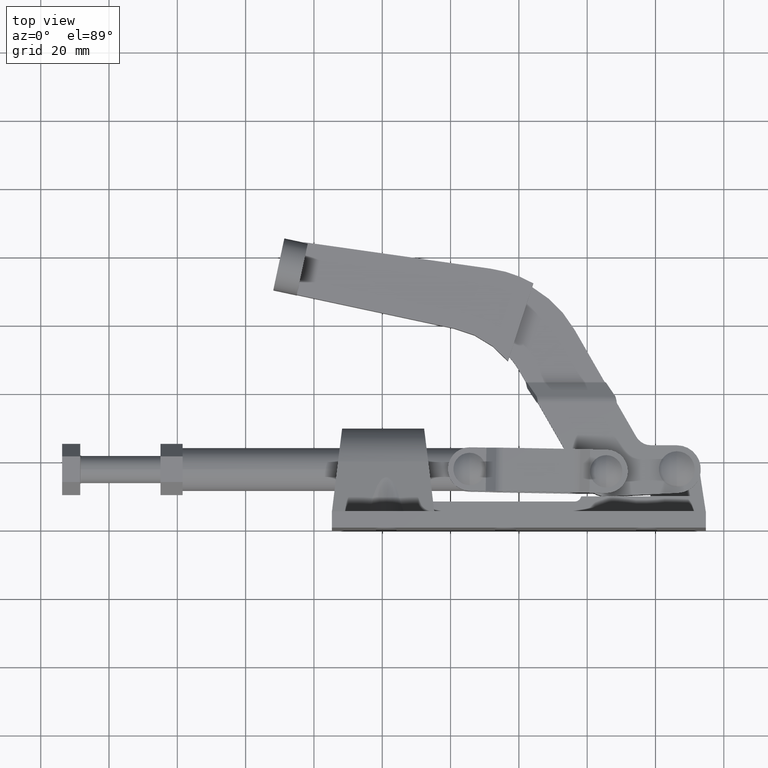
[diagram: clean part render]
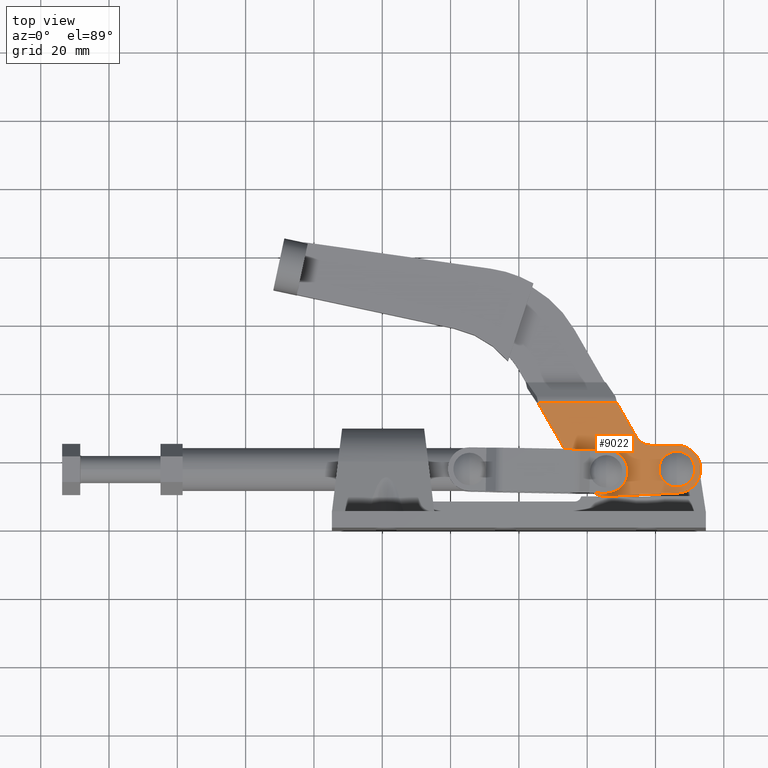
[diagram: same view with one face highlighted and labeled with its STEP entity id]
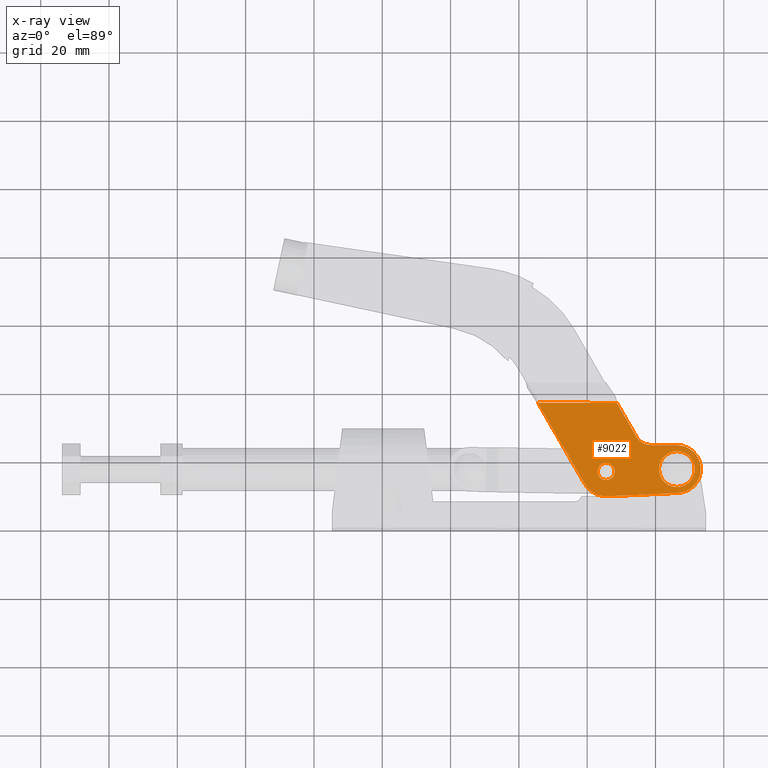
[diagram: x-ray of the same camera — body ghosted, the highlighted face saturated]
A machine part, top view. The second image highlights one B-rep face of the part: STEP entity #9022.
The next image is the same camera in x-ray: the body ghosted, the highlighted face saturated — about 0% of this face is hidden behind the body in this view.
In plain terms, the highlighted planar face has unit normal (0, 0, 1).
Its self-contained STEP definition (entity closure, byte-faithful):
#53 = VERTEX_POINT ( 'NONE', #6060 ) ;
#68 = EDGE_CURVE ( 'NONE', #3408, #7491, #8660, .T. ) ;
#354 = DIRECTION ( 'NONE',  ( 7.909725255113680600E-018, 5.401219338359685800E-017, 1.000000000000000000 ) ) ;
#418 = CARTESIAN_POINT ( 'NONE',  ( 19.24965462170589700, 13.17531681489601800, 6.274999999999997700 ) ) ;
#449 = CIRCLE ( 'NONE', #3706, 2.499999999999998700 ) ;
#459 = CIRCLE ( 'NONE', #3242, 5.250000000000008000 ) ;
#502 = EDGE_CURVE ( 'NONE', #5960, #5327, #6922, .T. ) ;
#512 = CARTESIAN_POINT ( 'NONE',  ( 25.55907583460860600, 16.80706624983414300, 6.274999999999997700 ) ) ;
#515 = FACE_OUTER_BOUND ( 'NONE', #1390, .T. ) ;
#641 = ORIENTED_EDGE ( 'NONE', *, *, #7682, .F. ) ;
#719 = FACE_BOUND ( 'NONE', #2257, .T. ) ;
#915 = ORIENTED_EDGE ( 'NONE', *, *, #68, .T. ) ;
#916 = ORIENTED_EDGE ( 'NONE', *, *, #2135, .F. ) ;
#952 = CARTESIAN_POINT ( 'NONE',  ( 46.25915705347352300, 24.49999401060219000, 6.274999999999995900 ) ) ;
#1128 = CARTESIAN_POINT ( 'NONE',  ( 46.24999999999999300, 17.49999999999999300, 6.274999999999995000 ) ) ;
#1165 = DIRECTION ( 'NONE',  ( -0.9999991443707729700, 0.001308150496584185600, 7.839062409725220800E-018 ) ) ;
#1191 = DIRECTION ( 'NONE',  ( -7.909725255113680600E-018, -5.401219338359685800E-017, -1.000000000000000000 ) ) ;
#1203 = DIRECTION ( 'NONE',  ( 1.000000000000000000, 0.0000000000000000000, 0.0000000000000000000 ) ) ;
#1269 = EDGE_CURVE ( 'NONE', #5327, #8662, #8634, .T. ) ;
#1390 = EDGE_LOOP ( 'NONE', ( #915, #3031, #2408, #3975, #5999, #7867, #4731, #7487 ) ) ;
#1511 = CIRCLE ( 'NONE', #6914, 4.999999999999995600 ) ;
#1700 = DIRECTION ( 'NONE',  ( 0.9999991443707730900, -0.001308150496584405000, 0.0000000000000000000 ) ) ;
#1739 = ORIENTED_EDGE ( 'NONE', *, *, #5902, .F. ) ;
#1778 = DIRECTION ( 'NONE',  ( 0.4988666806233692500, -0.8666787380360851900, 4.286532121759531200E-017 ) ) ;
#1815 = DIRECTION ( 'NONE',  ( 7.909725255113680600E-018, 5.401219338359685800E-017, 1.000000000000000000 ) ) ;
#1827 = DIRECTION ( 'NONE',  ( 7.909725255113680600E-018, 5.401219338359685800E-017, 1.000000000000000000 ) ) ;
#1843 = DIRECTION ( 'NONE',  ( 0.0000000000000000000, -1.000000000000000000, 0.0000000000000000000 ) ) ;
#2001 = VECTOR ( 'NONE', #1778, 1000.000000000000200 ) ;
#2135 = EDGE_CURVE ( 'NONE', #3933, #5671, #5931, .T. ) ;
#2163 = LINE ( 'NONE', #5384, #5903 ) ;
#2257 = EDGE_LOOP ( 'NONE', ( #916, #641 ) ) ;
#2281 = DIRECTION ( 'NONE',  ( 0.9988955827784722400, 0.04698526051493500500, -1.043876659543572900E-017 ) ) ;
#2404 = CARTESIAN_POINT ( 'NONE',  ( 5.584013993415916300, 36.91657000779607500, 6.275000006777103700 ) ) ;
#2408 = ORIENTED_EDGE ( 'NONE', *, *, #5238, .T. ) ;
#2442 = CARTESIAN_POINT ( 'NONE',  ( 34.35970871110382800, 27.01556243225421000, 6.274999999999995900 ) ) ;
#2587 = DIRECTION ( 'NONE',  ( -0.4988666806233694200, 0.8666787380360851900, -4.286532121759531200E-017 ) ) ;
#2588 = CARTESIAN_POINT ( 'NONE',  ( 25.55907583460860600, 16.80706624983414300, 6.274999999999997700 ) ) ;
#2700 = CARTESIAN_POINT ( 'NONE',  ( 46.24999999999999300, 12.24999999999998200, 6.274999999999995900 ) ) ;
#2852 = CARTESIAN_POINT ( 'NONE',  ( 25.55907583460859900, 16.80706624983415100, 6.274999999999996800 ) ) ;
#2999 = VERTEX_POINT ( 'NONE', #8446 ) ;
#3031 = ORIENTED_EDGE ( 'NONE', *, *, #7212, .T. ) ;
#3208 = ORIENTED_EDGE ( 'NONE', *, *, #5237, .F. ) ;
#3209 = CARTESIAN_POINT ( 'NONE',  ( 46.24999999999743500, 17.50000000000677900, 6.274999999999996800 ) ) ;
#3242 = AXIS2_PLACEMENT_3D ( 'NONE', #1128, #6050, #1843 ) ;
#3270 = DIRECTION ( 'NONE',  ( 1.000000000000000000, 0.0000000000000000000, 0.0000000000000000000 ) ) ;
#3408 = VERTEX_POINT ( 'NONE', #2442 ) ;
#3426 = CARTESIAN_POINT ( 'NONE',  ( 34.35970871110382100, 27.01556243225421000, 6.274999999999995900 ) ) ;
#3435 = DIRECTION ( 'NONE',  ( -0.9999991443707729700, 0.001308150496584600600, 7.839062409725199300E-018 ) ) ;
#3551 = DIRECTION ( 'NONE',  ( 0.9999991443707730900, -0.001308150496584300500, -7.839062409725216200E-018 ) ) ;
#3706 = AXIS2_PLACEMENT_3D ( 'NONE', #2588, #7471, #3270 ) ;
#3712 = CARTESIAN_POINT ( 'NONE',  ( 23.05907583460860600, 16.80706624983414300, 6.274999999999997700 ) ) ;
#3849 = LINE ( 'NONE', #7628, #7544 ) ;
#3933 = VERTEX_POINT ( 'NONE', #4467 ) ;
#3975 = ORIENTED_EDGE ( 'NONE', *, *, #5841, .T. ) ;
#4196 = CARTESIAN_POINT ( 'NONE',  ( 19.24965462170589700, 13.17531681489601800, 6.274999999999997700 ) ) ;
#4248 = FACE_BOUND ( 'NONE', #4886, .T. ) ;
#4467 = CARTESIAN_POINT ( 'NONE',  ( 28.05907583460860300, 16.80706624983414300, 6.274999999999997700 ) ) ;
#4560 = CARTESIAN_POINT ( 'NONE',  ( 25.55907583460859900, 16.80706624983415100, 6.274999999999996800 ) ) ;
#4731 = ORIENTED_EDGE ( 'NONE', *, *, #8813, .T. ) ;
#4886 = EDGE_LOOP ( 'NONE', ( #1739, #3208 ) ) ;
#4979 = VECTOR ( 'NONE', #2587, 1000.000000000000000 ) ;
#4982 = VECTOR ( 'NONE', #2281, 1000.000000000000100 ) ;
#5237 = EDGE_CURVE ( 'NONE', #8897, #2999, #7575, .T. ) ;
#5238 = EDGE_CURVE ( 'NONE', #8150, #8406, #5964, .T. ) ;
#5246 = DIRECTION ( 'NONE',  ( 0.9999991443707730900, -0.001308150496584309600, 0.0000000000000000000 ) ) ;
#5327 = VERTEX_POINT ( 'NONE', #7485 ) ;
#5384 = CARTESIAN_POINT ( 'NONE',  ( 46.25915705347352300, 24.49999401060219000, 6.274999999999995900 ) ) ;
#5405 = CARTESIAN_POINT ( 'NONE',  ( 38.69310240128425000, 29.50989583537105800, 6.274999999999995900 ) ) ;
#5421 = DIRECTION ( 'NONE',  ( 0.0000000000000000000, 0.0000000000000000000, 1.000000000000000000 ) ) ;
#5555 = AXIS2_PLACEMENT_3D ( 'NONE', #6014, #1815, #6708 ) ;
#5671 = VERTEX_POINT ( 'NONE', #3712 ) ;
#5841 = EDGE_CURVE ( 'NONE', #8406, #5960, #8941, .T. ) ;
#5902 = EDGE_CURVE ( 'NONE', #2999, #8897, #459, .T. ) ;
#5903 = VECTOR ( 'NONE', #1165, 1000.000000000000100 ) ;
#5931 = CIRCLE ( 'NONE', #8630, 2.499999999999998700 ) ;
#5960 = VERTEX_POINT ( 'NONE', #7613 ) ;
#5964 = LINE ( 'NONE', #418, #2001 ) ;
#5999 = ORIENTED_EDGE ( 'NONE', *, *, #502, .T. ) ;
#6014 = CARTESIAN_POINT ( 'NONE',  ( 46.24999999999999300, 17.49999999999999300, 6.274999999999995000 ) ) ;
#6050 = DIRECTION ( 'NONE',  ( 7.909725255113680600E-018, 5.401219338359685800E-017, 1.000000000000000000 ) ) ;
#6060 = CARTESIAN_POINT ( 'NONE',  ( 38.68656164880132300, 24.50990011351719400, 6.274999999999995900 ) ) ;
#6110 = DIRECTION ( 'NONE',  ( -0.9999991443707732000, 0.001308150496584504700, 0.0000000000000000000 ) ) ;
#6517 = CARTESIAN_POINT ( 'NONE',  ( 28.67800500109032300, 36.88635956614234600, 6.275000006777102800 ) ) ;
#6702 = AXIS2_PLACEMENT_3D ( 'NONE', #2852, #7735, #3551 ) ;
#6708 = DIRECTION ( 'NONE',  ( 0.0000000000000000000, -1.000000000000000000, 0.0000000000000000000 ) ) ;
#6914 = AXIS2_PLACEMENT_3D ( 'NONE', #5405, #1191, #6110 ) ;
#6922 = LINE ( 'NONE', #7515, #4982 ) ;
#7212 = EDGE_CURVE ( 'NONE', #7491, #8150, #3849, .T. ) ;
#7471 = DIRECTION ( 'NONE',  ( 0.0000000000000000000, 0.0000000000000000000, 1.000000000000000000 ) ) ;
#7485 = CARTESIAN_POINT ( 'NONE',  ( 46.57889682360198000, 10.50773092055747400, 6.274999999999997700 ) ) ;
#7487 = ORIENTED_EDGE ( 'NONE', *, *, #8263, .T. ) ;
#7491 = VERTEX_POINT ( 'NONE', #6517 ) ;
#7515 = CARTESIAN_POINT ( 'NONE',  ( 25.90112853115733000, 9.535106407206873400, 6.274999999999997700 ) ) ;
#7544 = VECTOR ( 'NONE', #3435, 1000.000000000000200 ) ;
#7575 = CIRCLE ( 'NONE', #5555, 5.250000000000008000 ) ;
#7613 = CARTESIAN_POINT ( 'NONE',  ( 25.90112853115733000, 9.535106407206873400, 6.274999999999997700 ) ) ;
#7628 = CARTESIAN_POINT ( 'NONE',  ( 25.58534788694842600, 36.89040523054354300, 6.274999999999995900 ) ) ;
#7645 = AXIS2_PLACEMENT_3D ( 'NONE', #4560, #354, #5246 ) ;
#7682 = EDGE_CURVE ( 'NONE', #5671, #3933, #449, .T. ) ;
#7702 = PLANE ( 'NONE',  #6702 ) ;
#7735 = DIRECTION ( 'NONE',  ( 7.909725255113680600E-018, 5.401219338359684600E-017, 1.000000000000000000 ) ) ;
#7867 = ORIENTED_EDGE ( 'NONE', *, *, #1269, .T. ) ;
#8100 = AXIS2_PLACEMENT_3D ( 'NONE', #3209, #1827, #1700 ) ;
#8150 = VERTEX_POINT ( 'NONE', #2404 ) ;
#8263 = EDGE_CURVE ( 'NONE', #53, #3408, #1511, .T. ) ;
#8406 = VERTEX_POINT ( 'NONE', #4196 ) ;
#8446 = CARTESIAN_POINT ( 'NONE',  ( 46.24999999999999300, 22.75000000000000000, 6.274999999999995900 ) ) ;
#8630 = AXIS2_PLACEMENT_3D ( 'NONE', #512, #5421, #1203 ) ;
#8634 = CIRCLE ( 'NONE', #8100, 6.999999999999997300 ) ;
#8660 = LINE ( 'NONE', #3426, #4979 ) ;
#8662 = VERTEX_POINT ( 'NONE', #952 ) ;
#8813 = EDGE_CURVE ( 'NONE', #8662, #53, #2163, .T. ) ;
#8897 = VERTEX_POINT ( 'NONE', #2700 ) ;
#8941 = CIRCLE ( 'NONE', #7645, 7.279999999999998500 ) ;
#9022 = ADVANCED_FACE ( 'NONE', ( #4248, #515, #719 ), #7702, .T. ) ;